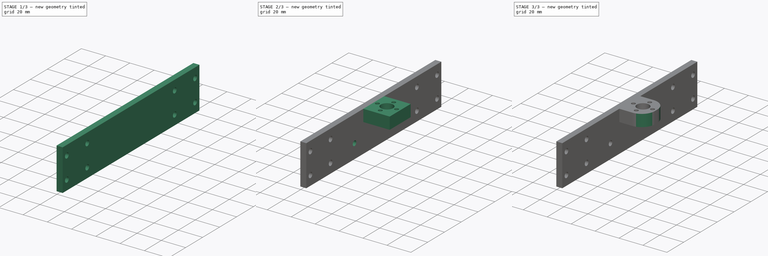
[diagram: build sequence overview — one tinted view per stage of 3, left to right]
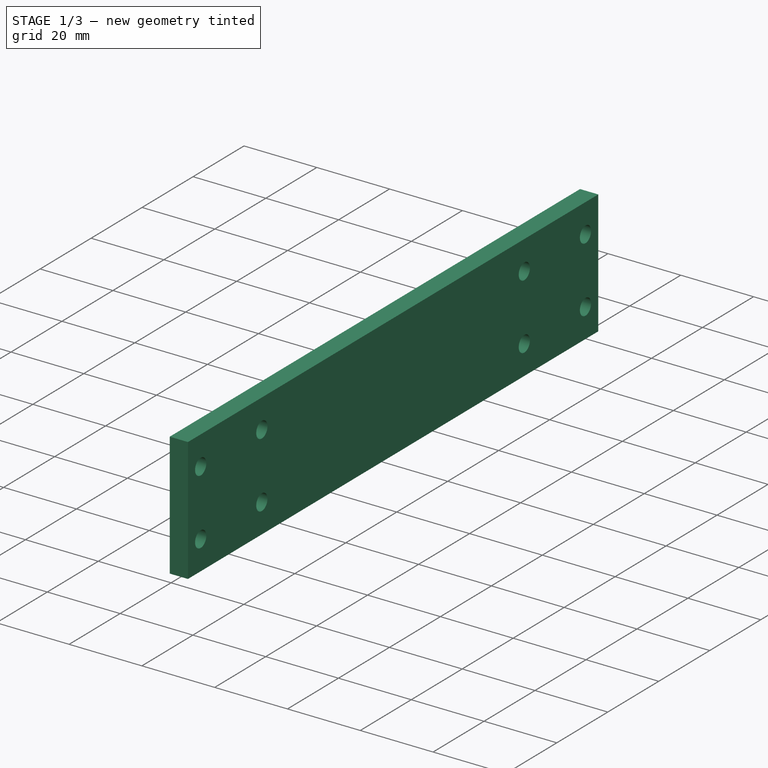
[diagram: stage 1 of 3 — iso view after this stage's code; geometry added in this stage tinted green]
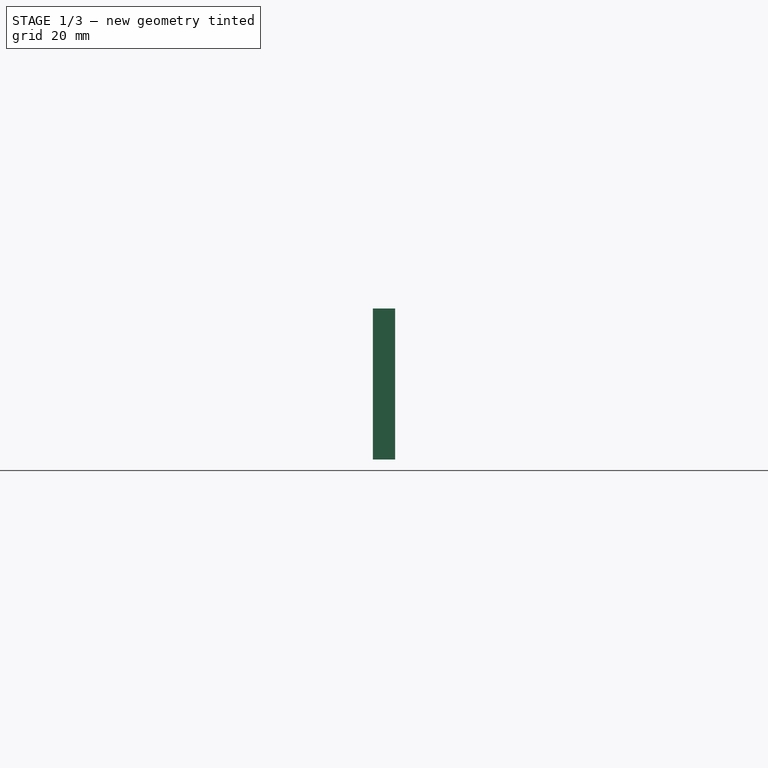
[diagram: stage 1 of 3 — front view after this stage's code; geometry added in this stage tinted green]
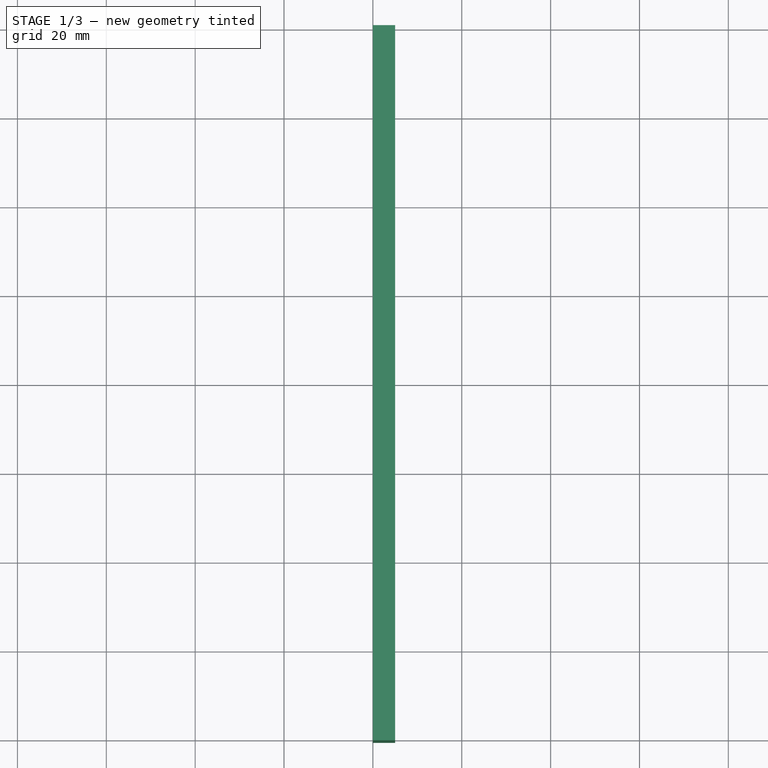
[diagram: stage 1 of 3 — top view after this stage's code; geometry added in this stage tinted green]
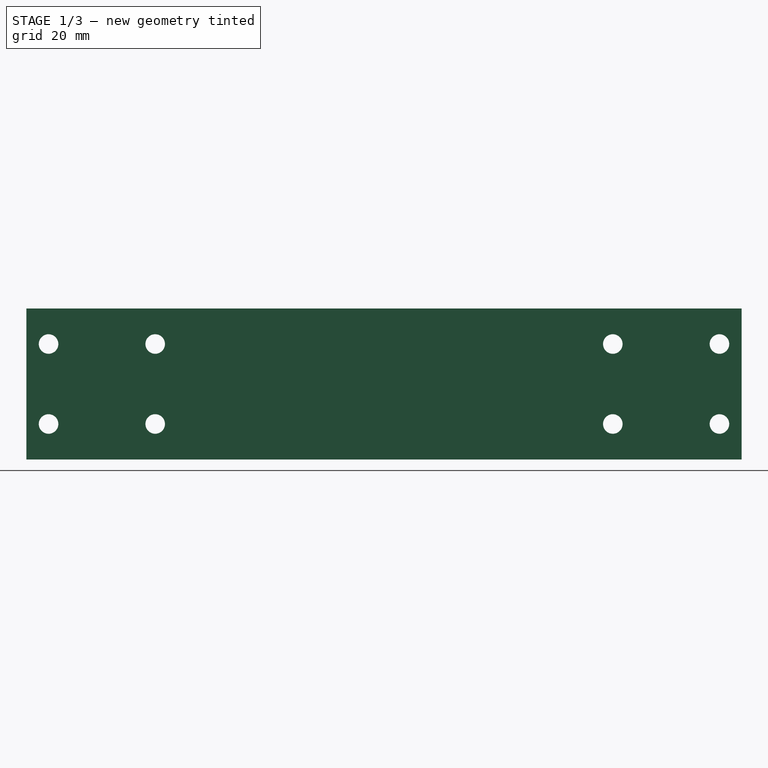
[diagram: stage 1 of 3 — right view after this stage's code; geometry added in this stage tinted green]
FCSTD DOCUMENT  (FreeCAD 0.19R22960 (Git))
Label: led_carrier
License: All rights reserved
LicenseURL: http://en.wikipedia.org/wiki/All_rights_reserved
objects: PartDesign::CoordinateSystem×5, Sketcher::SketchObject×5, App::Link×4, App::DocumentObjectGroup×3, PartDesign::Pad×2, PartDesign::Pocket×2, PartDesign::Fillet×2, Part::FeaturePython×2, App::FeaturePython×1, PartDesign::Hole×1, PartDesign::Body×1, App::Part×1, App::AnnotationLabel×1
note: 27 computed .brp shape members not serialized (recipe doc carries the construction recipe); baked Part::Feature solids carry a one-line shape summary decoded from their .brp
EXTERNAL_REF file=part/SCS8UU.FCStd obj=MH1
EXTERNAL_REF file=part/SCS8UU.FCStd obj=Model
EXTERNAL_REF file=part/Lead_Screw_Nut.FCStd obj=MH
EXTERNAL_REF file=part/Lead_Screw_Nut.FCStd obj=Model
EXTERNAL_REF file=part/led_clamp.FCStd obj=MH
EXTERNAL_REF file=part/led_clamp.FCStd obj=Model

FEATURE [PartDesign::Body] Body
  Group = -> [Sketch,Pad,Sketch003,Hole,Sketch004,Pad001,Sketch005,Pocket,Sketch006,Pocket001,Fillet,Fillet001]
  Origin = -> Origin001
  Tip = -> Fillet001
FEATURE [App::Part] Model
  Configuration = 0
  Group = -> [LCS_Origin,Constraints,Variables,Body,MH1,MH2,SCS8UU,SCS8UU001,Nut_Mount,Lead_Screw_Nut,LED_Bracket_MH,led_clamp]
  Origin = -> Origin
  Type = Assembly4 Model
FEATURE [Part::FeaturePython] aCircle  # WARN: FeaturePython — macro-defined, semantics opaque (R4)
FEATURE [Part::FeaturePython] Radius  # WARN: FeaturePython — macro-defined, semantics opaque (R4)
FEATURE [App::AnnotationLabel] MeasureLbl
  BasePosition = (8,-1.65,17)
  LabelText = R = 1.650
  TextPosition = (0,0,0)
FEATURE [App::DocumentObjectGroup] Measures
  Group = -> [aCircle,Radius,MeasureLbl]

RESOLVED EXTERNAL PARTS (link-assembly join: the EXTERNAL_REF files above that resolve inside this repo's crawl, each included once):
---- part part/SCS8UU.FCStd = doc fcstd_db1f1a4ae632 ----
FCSTD DOCUMENT  (FreeCAD 0.19R22960 (Git))
Label: SCS8UU
License: All rights reserved
LicenseURL: http://en.wikipedia.org/wiki/All_rights_reserved
objects: PartDesign::CoordinateSystem×3, App::DocumentObjectGroup×2, Part::Feature×1, PartDesign::FeatureBase×1, PartDesign::Body×1, App::FeaturePython×1, App::Part×1
note: 6 computed .brp shape members not serialized (recipe doc carries the construction recipe); baked Part::Feature solids carry a one-line shape summary decoded from their .brp

FEATURE [Part::Feature] Feature  label="SCS8UU Block, Linear Bearing, 8mm Shaft v005"
  shape: bbox 30 x 22.22 x 34 mm, 209 faces, 4 solids (baked)
FEATURE [PartDesign::FeatureBase] BaseFeature
  BaseFeature = -> Feature
FEATURE [PartDesign::Body] Body
  BaseFeature = -> Feature
  Group = -> [BaseFeature]
  Origin = -> Origin
  Tip = -> BaseFeature
FEATURE [App::DocumentObjectGroup] Parts
FEATURE [PartDesign::CoordinateSystem] LCS_Origin
  AttacherType = Attacher::AttachEngine3D
  MapMode = 2
  Support = -> [X_Axis001]
FEATURE [App::DocumentObjectGroup] Constraints
FEATURE [App::FeaturePython] Variables  # WARN: FeaturePython — macro-defined, semantics opaque (R4)
FEATURE [PartDesign::CoordinateSystem] MH1
  AttacherType = Attacher::AttachEngine3D
  AttachmentOffset = pos=(6,0,-4) rot=(0,0,1;0rad)
  MapMode = 1
  Placement = pos=(6,1,-5) rot=(0.57735,-0.57735,-0.57735;2.0944rad)
  Support = -> [BaseFeature]
FEATURE [PartDesign::CoordinateSystem] Rail_MH
  AttacherType = Attacher::AttachEngine3D
  MapMode = 11
  Placement = pos=(26.75,-10,-17) rot=(0.707107,0,0.707107;3.14159rad)
  Support = -> [BaseFeature]
FEATURE [App::Part] Model
  Configuration = 0
  Group = -> [LCS_Origin,Constraints,Variables,Feature,Body,MH1,Rail_MH]
  Origin = -> Origin001
  Type = Assembly4 Model
---- part part/led_clamp.FCStd = doc fcstd_775788ca02b6 ----
FCSTD DOCUMENT  (FreeCAD 0.19R22960 (Git))
Label: led_clamp
License: All rights reserved
LicenseURL: http://en.wikipedia.org/wiki/All_rights_reserved
objects: Sketcher::SketchObject×4, PartDesign::CoordinateSystem×3, App::DocumentObjectGroup×2, PartDesign::Pad×2, App::FeaturePython×1, App::Link×1, PartDesign::Hole×1, PartDesign::Pocket×1, PartDesign::Body×1, App::Part×1
note: 16 computed .brp shape members not serialized (recipe doc carries the construction recipe); baked Part::Feature solids carry a one-line shape summary decoded from their .brp
EXTERNAL_REF file=led_panel.FCStd obj=MH
EXTERNAL_REF file=led_panel.FCStd obj=Model

FEATURE [App::DocumentObjectGroup] Parts
FEATURE [PartDesign::CoordinateSystem] LCS_Origin
  AttacherType = Attacher::AttachEngine3D
  MapMode = 2
  Support = -> [X_Axis]
FEATURE [App::DocumentObjectGroup] Constraints
FEATURE [App::FeaturePython] Variables  # WARN: FeaturePython — macro-defined, semantics opaque (R4)
FEATURE [Sketcher::SketchObject] Sketch
  MapMode = 5
  Support = -> [XY_Plane001]
  sketch-geometry (8):
    g0: LineSegment StartX=50.5 StartY=-30 StartZ=0 EndX=-50.5 EndY=-30 EndZ=0
    g1: LineSegment StartX=-27 StartY=40 StartZ=0 EndX=-27 EndY=30 EndZ=0
    g2: LineSegment StartX=-27 StartY=30 StartZ=0 EndX=-50.5 EndY=30 EndZ=0
    g3: LineSegment StartX=27 StartY=40 StartZ=0 EndX=27 EndY=30 EndZ=0
    g4: LineSegment StartX=27 StartY=30 StartZ=0 EndX=50.5 EndY=30 EndZ=0
    g5: LineSegment StartX=-50.5 StartY=30 StartZ=0 EndX=-50.5 EndY=-30 EndZ=0
    g6: LineSegment StartX=-27 StartY=40 StartZ=0 EndX=27 EndY=40 EndZ=0
    g7: LineSegment StartX=50.5 StartY=30 StartZ=0 EndX=50.5 EndY=-30 EndZ=0
  constraints (22):
    c: Symmetric(g0,g0,g-2)
    c: DistanceX(g0,g0) = 101
    c: Coincident(g1,g2)
    c: Horizontal(g2)
    c: Vertical(g1)
    c: Coincident(g3,g4)
    c: Horizontal(g4)
    c: Vertical(g3)
    c: Equal(g3,g1)
    c: Equal(g2,g4)
    c: Coincident(g5,g2)
    c: Coincident(g5,g0)
    c: Coincident(g6,g1)
    c: Coincident(g6,g3)
    c: Horizontal(g6)
    c: Coincident(g7,g4)
    c: Coincident(g7,g0)
    c: Vertical(g7)
    c: DistanceY(g7,g7) = 60
    c: DistanceY(g3,g3) = 10
    c: DistanceX(g6,g6) = 54
    c: Symmetric(g2,g0,g-1)
FEATURE [PartDesign::Pad] Pad
  Direction = (1,1,1)
  Length = 5
  Length2 = 100
  Profile = -> Sketch
  Type = 0
FEATURE [Sketcher::SketchObject] Sketch002
  ExternalGeometry = -> [Pad001]
  MapMode = 5
  Placement = pos=(0,30,0) rot=(1,0,0;1.5708rad)
  Support = -> [Pad001]
  sketch-geometry (9):
    g0: Circle CenterX=-23 CenterY=-6 CenterZ=0 NormalX=0 NormalY=0 NormalZ=1 AngleXU=0 Radius=2.1
    g1: Circle CenterX=23 CenterY=-6 CenterZ=0 NormalX=0 NormalY=0 NormalZ=1 AngleXU=0 Radius=2.1
    g2: LineSegment [constr] StartX=-23 StartY=-6 StartZ=0 EndX=-23 EndY=-12 EndZ=0
    g3: LineSegment [constr] StartX=23 StartY=-6 StartZ=0 EndX=23 EndY=-12 EndZ=0
    g4: LineSegment [constr] StartX=23 StartY=-6 StartZ=0 EndX=23 EndY=0 EndZ=0
    g5: LineSegment [constr] StartX=-23 StartY=-6 StartZ=0 EndX=-27 EndY=-6 EndZ=0
    g6: LineSegment [constr] StartX=23 StartY=-6 StartZ=0 EndX=27 EndY=-6 EndZ=0
    g7: LineSegment [constr] StartX=-23 StartY=-6 StartZ=0 EndX=-23 EndY=0 EndZ=0
    g8: LineSegment [constr] StartX=-23 StartY=-6 StartZ=0 EndX=23 EndY=-6 EndZ=0
  constraints (27):
    c: Coincident(g2,g0)
    c: PointOnObject(g2,g-6)
    c: Vertical(g2)
    c: Coincident(g3,g1)
    c: PointOnObject(g3,g-6)
    c: Vertical(g3)
    c: Coincident(g4,g1)
    c: PointOnObject(g4,g-5)
    c: Vertical(g4)
    c: Equal(g4,g3)
    c: Equal(g0,g1)
    c: Coincident(g5,g0)
    c: PointOnObject(g5,g-3)
    c: Horizontal(g5)
    c: Coincident(g6,g1)
    c: PointOnObject(g6,g-4)
    c: Horizontal(g6)
    c: Equal(g5,g6)
    c: DistanceX(g5,g5) = 4
    c: Radius(g0) = 2.1
    c: Coincident(g7,g0)
    c: PointOnObject(g7,g-5)
    c: Vertical(g7)
    c: Equal(g7,g2)
    c: Coincident(g8,g0)
    c: Coincident(g8,g1)
    c: DistanceX(g8,g8) = 46
FEATURE [PartDesign::Hole] Hole
  BaseFeature = -> Pad001
  Depth = 25
  DepthType = 0
  Diameter = 4.4
  DrillPoint = 1
  DrillPointAngle = 118
  HoleCutCountersinkAngle = 90
  HoleCutDepth = 0
  HoleCutDiameter = 0
  HoleCutType = 0
  ModelActualThread = false
  Profile = -> Sketch002
  Tapered = false
  TaperedAngle = 90
  ThreadAngle = 0
  ThreadClass = 0
  ThreadCutOffInner = 0
  ThreadCutOffOuter = 0
  ThreadDirection = 0
  ThreadFit = 0
  ThreadPitch = 0
  ThreadSize = 5
  ThreadType = 1
  Threaded = false
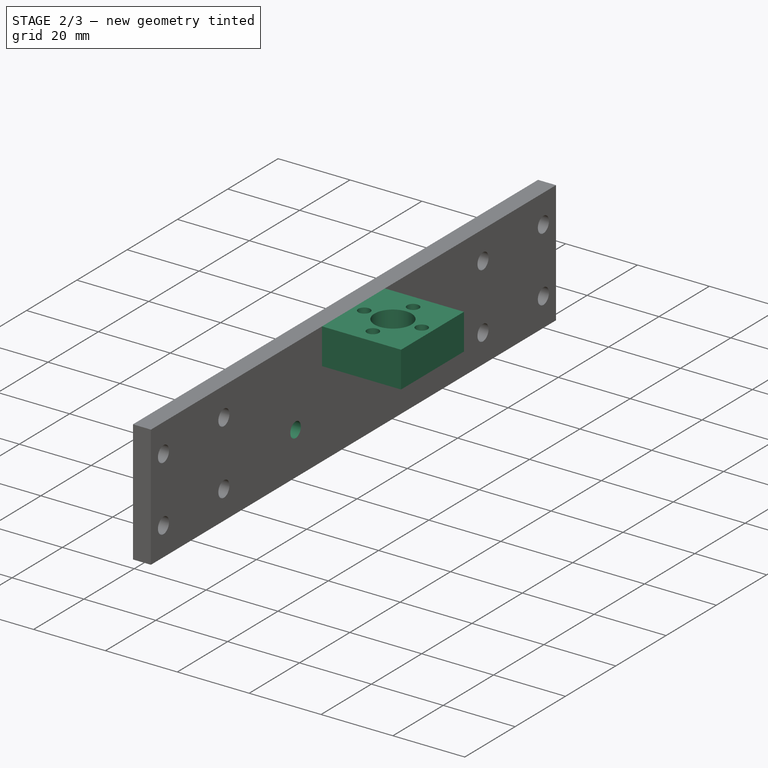
[diagram: stage 2 of 3 — iso view after this stage's code; geometry added in this stage tinted green]
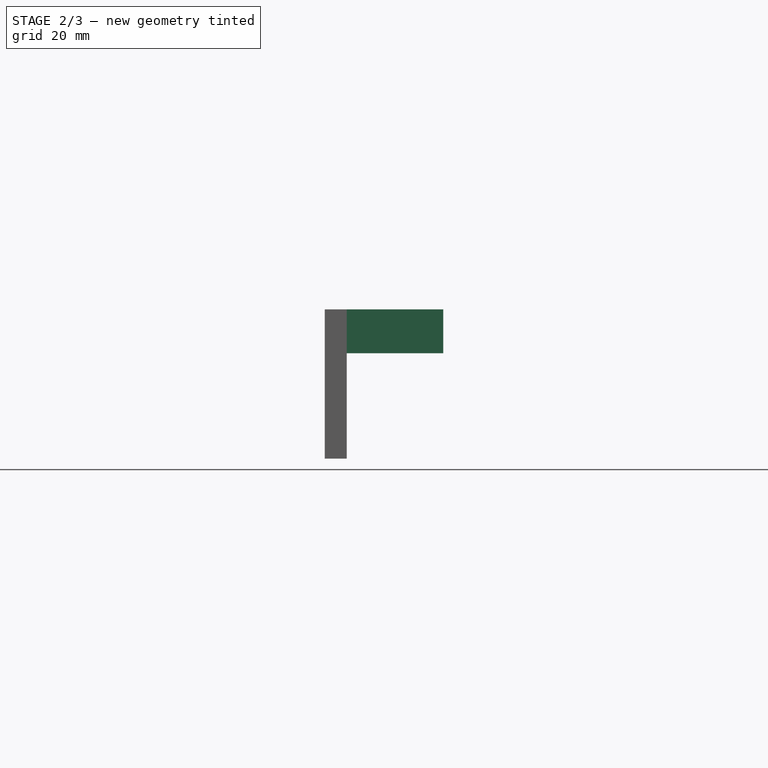
[diagram: stage 2 of 3 — front view after this stage's code; geometry added in this stage tinted green]
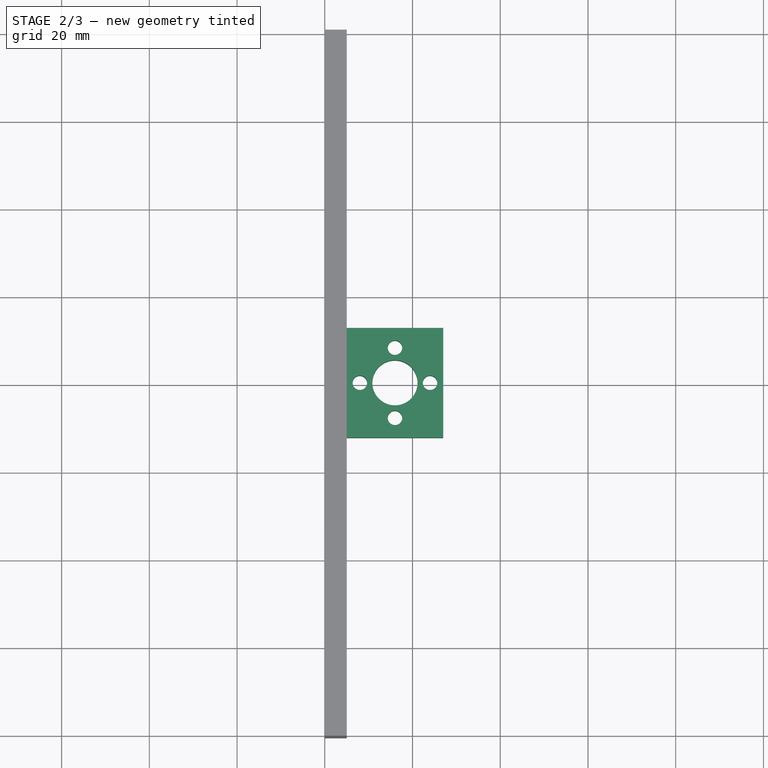
[diagram: stage 2 of 3 — top view after this stage's code; geometry added in this stage tinted green]
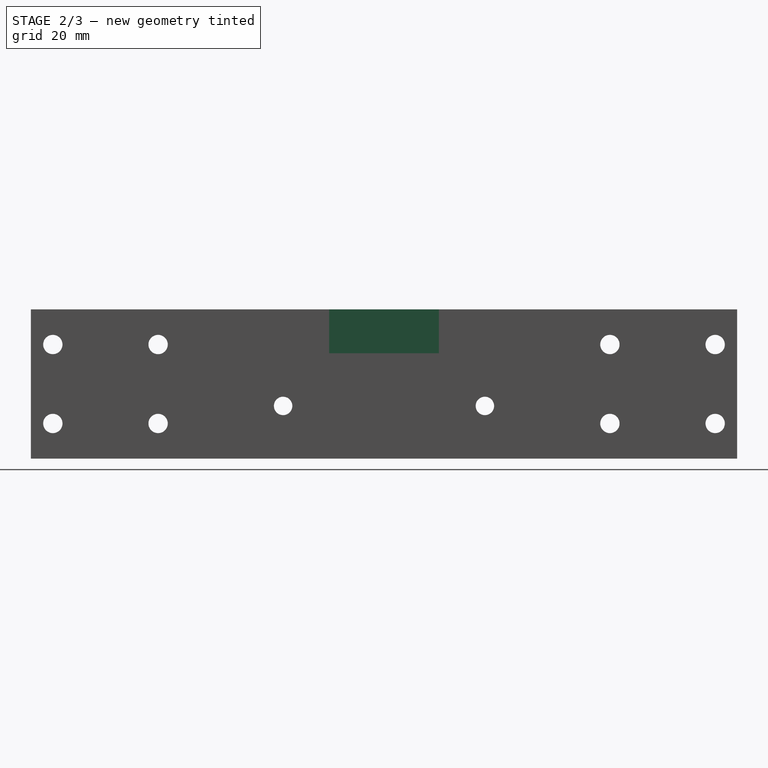
[diagram: stage 2 of 3 — right view after this stage's code; geometry added in this stage tinted green]
FEATURE [App::DocumentObjectGroup] Parts
FEATURE [PartDesign::CoordinateSystem] LCS_Origin
  AttacherType = Attacher::AttachEngine3D
  MapMode = 2
  Support = -> [X_Axis]
FEATURE [App::DocumentObjectGroup] Constraints
FEATURE [App::FeaturePython] Variables  # WARN: FeaturePython — macro-defined, semantics opaque (R4)
FEATURE [Sketcher::SketchObject] Sketch
  MapMode = 5
  Placement = pos=(0,0,0) rot=(0.57735,0.57735,0.57735;2.0944rad)
  Support = -> [YZ_Plane001]
  sketch-geometry (4):
    g0: LineSegment StartX=-80.5 StartY=17 StartZ=0 EndX=80.5 EndY=17 EndZ=0
    g1: LineSegment StartX=80.5 StartY=17 StartZ=0 EndX=80.5 EndY=-17 EndZ=0
    g2: LineSegment StartX=80.5 StartY=-17 StartZ=0 EndX=-80.5 EndY=-17 EndZ=0
    g3: LineSegment StartX=-80.5 StartY=-17 StartZ=0 EndX=-80.5 EndY=17 EndZ=0
  constraints (10):
    c: Coincident(g0,g1)
    c: Coincident(g1,g2)
    c: Coincident(g2,g3)
    c: Coincident(g3,g0)
    c: Horizontal(g0)
    c: Vertical(g3)
    c: DistanceX(g2,g2) = 161
    c: Symmetric(g2,g1,g-2)
    c: Symmetric(g1,g0,g-1)
    c: DistanceY(g1,g1) = 34
FEATURE [PartDesign::Pad] Pad
  Direction = (1,1,1)
  Length = 5
  Length2 = 100
  Placement = pos=(0,0,0) rot=(0.57735,0.57735,0.57735;2.0944rad)
  Profile = -> Sketch
  Type = 0
FEATURE [Sketcher::SketchObject] Sketch003
  ExternalGeometry = -> [Pad]
  MapMode = 5
  Placement = pos=(5,-1.1e-15,1.1e-15) rot=(0.57735,0.57735,0.57735;2.0944rad)
  Support = -> [Pad]
  sketch-geometry (10):
    g0: Circle CenterX=-75.5 CenterY=9 CenterZ=0 NormalX=0 NormalY=0 NormalZ=1 AngleXU=0 Radius=2.05
    g1: Circle CenterX=-75.5 CenterY=-9 CenterZ=0 NormalX=0 NormalY=0 NormalZ=1 AngleXU=0 Radius=2.05
    g2: Circle CenterX=-51.5 CenterY=9 CenterZ=0 NormalX=0 NormalY=0 NormalZ=1 AngleXU=0 Radius=2.05
    g3: Circle CenterX=-51.5 CenterY=-9 CenterZ=0 NormalX=0 NormalY=0 NormalZ=1 AngleXU=0 Radius=2.05
    g4: LineSegment [constr] StartX=-75.5 StartY=9 StartZ=0 EndX=-75.5 EndY=17 EndZ=0
    g5: LineSegment [constr] StartX=-75.5 StartY=-9 StartZ=0 EndX=-75.5 EndY=-17 EndZ=0
    g6: Circle CenterX=51.5 CenterY=9 CenterZ=0 NormalX=0 NormalY=0 NormalZ=1 AngleXU=0 Radius=2.05
    g7: Circle CenterX=51.5 CenterY=-9 CenterZ=0 NormalX=0 NormalY=0 NormalZ=1 AngleXU=0 Radius=2.05
    g8: Circle CenterX=75.5 CenterY=9 CenterZ=0 NormalX=0 NormalY=0 NormalZ=1 AngleXU=0 Radius=2.05
    g9: Circle CenterX=75.5 CenterY=-9 CenterZ=0 NormalX=0 NormalY=0 NormalZ=1 AngleXU=0 Radius=2.05
  constraints (30):
    c: Equal(g0,g2)
    c: Equal(g2,g3)
    c: Equal(g3,g1)
    c: Vertical(g2,g3)
    c: Vertical(g0,g1)
    c: Horizontal(g2,g0)
    c: Horizontal(g3,g1)
    c: DistanceX(g-4,g0) = 5
    c: DistanceY(g1,g0) = 18
    c: DistanceX(g0,g2) = 24
    c: Coincident(g4,g0)
    c: PointOnObject(g4,g-5)
    c: Coincident(g5,g1)
    c: PointOnObject(g5,g-6)
    c: Vertical(g5)
    c: Vertical(g4)
    c: Equal(g4,g5)
    c: Radius(g0) = 2.05
    c: Vertical(g8,g9)
    c: Vertical(g6,g7)
    c: Horizontal(g8,g6)
    c: Horizontal(g9,g7)
    c: DistanceX(g6,g8) = 24
    c: Horizontal(g7,g3)
    c: Horizontal(g6,g2)
    c: DistanceX(g8,g-5) = 5
    c: Equal(g6,g8)
    c: Equal(g8,g7)
    c: Equal(g7,g9)
    c: Equal(g9,g2)
FEATURE [PartDesign::Hole] Hole
  BaseFeature = -> Pad
  Depth = 25
  DepthType = 1
  Diameter = 4.4
  DrillPoint = 1
  DrillPointAngle = 118
  HoleCutCountersinkAngle = 90
  HoleCutDepth = 0
  HoleCutDiameter = 0
  HoleCutType = 0
  ModelActualThread = false
  Placement = pos=(0,0,0) rot=(0.57735,0.57735,0.57735;2.0944rad)
  Profile = -> Sketch003
  Tapered = false
  TaperedAngle = 90
  ThreadAngle = 0
  ThreadClass = 0
  ThreadCutOffInner = 0
  ThreadCutOffOuter = 0
  ThreadDirection = 0
  ThreadFit = 0
  ThreadPitch = 0
  ThreadSize = 5
  ThreadType = 1
  Threaded = false
FEATURE [App::Link] SCS8UU
  AssemblyType = Asm4EE
  AttachedBy = #MH1
  AttachedTo = Parent Assembly#MH1
  AttachmentOffset = pos=(0,0,0) rot=(0,-1,0;1.5708rad)
  LinkPlacement = pos=(6,-80.5,-15) rot=(0.57735,-0.57735,0.57735;2.0944rad)
  LinkedObject = -> <external part/SCS8UU.FCStd>#Model
  Placement = pos=(6,-80.5,-15) rot=(0.57735,-0.57735,0.57735;2.0944rad)
  expr: Placement = MH1.Placement * AttachmentOffset * SCS8UU#MH1.Placement ^ -1
FEATURE [App::Link] SCS8UU001
  AssemblyType = Asm4EE
  AttachedBy = #MH1
  AttachedTo = Parent Assembly#MH2
  AttachmentOffset = pos=(0,0,0) rot=(0,1,0;4.71239rad)
  LinkPlacement = pos=(6,46.5,-15) rot=(-0.57735,0.57735,-0.57735;4.18879rad)
  LinkedObject = -> <external part/SCS8UU.FCStd>#Model
  Placement = pos=(6,46.5,-15) rot=(-0.57735,0.57735,-0.57735;4.18879rad)
  expr: Placement = MH2.Placement * AttachmentOffset * SCS8UU#MH1.Placement ^ -1
FEATURE [PartDesign::CoordinateSystem] MH2
  AttacherType = Attacher::AttachEngine3D
  MapMode = 11
  Placement = pos=(5,51.5,-9) rot=(0.707107,0,0.707107;3.14159rad)
  Support = -> [Hole]
FEATURE [PartDesign::CoordinateSystem] MH1
  AttacherType = Attacher::AttachEngine3D
  MapMode = 11
  Placement = pos=(5,-75.5,-9) rot=(0.707107,0,0.707107;3.14159rad)
  Support = -> [Hole]
FEATURE [Sketcher::SketchObject] Sketch004
  ExternalGeometry = -> [Hole]
  MapMode = 5
  Placement = pos=(5,-1.1e-15,1.1e-15) rot=(0.57735,0.57735,0.57735;2.0944rad)
  Support = -> [Hole]
  sketch-geometry (6):
    g0: LineSegment StartX=-12.5 StartY=7 StartZ=0 EndX=12.5 EndY=7 EndZ=0
    g1: LineSegment StartX=12.5 StartY=7 StartZ=0 EndX=12.5 EndY=17 EndZ=0
    g2: LineSegment StartX=12.5 StartY=17 StartZ=0 EndX=-12.5 EndY=17 EndZ=0
    g3: LineSegment StartX=-12.5 StartY=17 StartZ=0 EndX=-12.5 EndY=7 EndZ=0
    g4: LineSegment [constr] StartX=-80.5 StartY=17 StartZ=0 EndX=-12.5 EndY=17 EndZ=0
    g5: LineSegment [constr] StartX=12.5 StartY=17 StartZ=0 EndX=80.5 EndY=17 EndZ=0
  constraints (16):
    c: Coincident(g0,g1)
    c: Coincident(g1,g2)
    c: Coincident(g2,g3)
    c: Coincident(g3,g0)
    c: Horizontal(g2)
    c: Vertical(g1)
    c: Vertical(g3)
    c: Coincident(g4,g-3)
    c: Coincident(g4,g2)
    c: Coincident(g5,g1)
    c: Coincident(g5,g-3)
    c: Horizontal(g5)
    c: Equal(g5,g4)
    c: DistanceX(g2,g2) = 25
    c: Horizontal(g0)
    c: DistanceY(g3,g3) = 10
FEATURE [PartDesign::Pad] Pad001
  BaseFeature = -> Hole
  Direction = (1,1,1)
  Length = 22
  Length2 = 100
  Placement = pos=(0,0,0) rot=(0.57735,0.57735,0.57735;2.0944rad)
  Profile = -> Sketch004
  Type = 0
FEATURE [Sketcher::SketchObject] Sketch005
  ExternalGeometry = -> [Pad001]
  MapMode = 5
  Placement = pos=(-5.6e-15,0,17) rot=(0,0,-1;1.5708rad)
  Support = -> [Pad001]
  sketch-geometry (9):
    g0: Circle CenterX=0 CenterY=16 CenterZ=0 NormalX=0 NormalY=0 NormalZ=1 AngleXU=0 Radius=5.15
    g1: Circle CenterX=0 CenterY=8 CenterZ=0 NormalX=0 NormalY=0 NormalZ=1 AngleXU=0 Radius=1.65
    g2: Circle CenterX=8 CenterY=16 CenterZ=0 NormalX=0 NormalY=0 NormalZ=1 AngleXU=0 Radius=1.65
    g3: Circle CenterX=-8 CenterY=16 CenterZ=0 NormalX=0 NormalY=0 NormalZ=1 AngleXU=0 Radius=1.65
    g4: Circle CenterX=0 CenterY=24 CenterZ=0 NormalX=0 NormalY=0 NormalZ=1 AngleXU=0 Radius=1.65
    g5: LineSegment [constr] StartX=0 StartY=16 StartZ=0 EndX=8 EndY=16 EndZ=0
    g6: LineSegment [constr] StartX=0 StartY=16 StartZ=0 EndX=0 EndY=24 EndZ=0
    g7: LineSegment [constr] StartX=0 StartY=16 StartZ=0 EndX=-8 EndY=16 EndZ=0
    g8: LineSegment [constr] StartX=0 StartY=16 StartZ=0 EndX=0 EndY=8 EndZ=0
  constraints (23):
    c: PointOnObject(g0,g-2)
    c: Radius(g0) = 5.15
    c: DistanceY(g-4,g0) = 11
    c: PointOnObject(g1,g-2)
    c: PointOnObject(g4,g-2)
    c: Coincident(g5,g0)
    c: Coincident(g5,g2)
    c: Horizontal(g5)
    c: Coincident(g6,g0)
    c: Coincident(g6,g4)
    c: Coincident(g7,g0)
    c: Coincident(g7,g3)
    c: Horizontal(g7)
    c: Coincident(g8,g0)
    c: Coincident(g8,g1)
    c: Equal(g7,g8)
    c: Equal(g8,g5)
    c: Equal(g5,g6)
    c: DistanceX(g7,g7) = 8
    c: Equal(g3,g4)
    c: Equal(g4,g2)
    c: Equal(g2,g1)
    c: Diameter(g3) = 3.3
FEATURE [PartDesign::Pocket] Pocket
  BaseFeature = -> Pad001
  Length = 5
  Length2 = 100
  Placement = pos=(0,0,0) rot=(0.57735,0.57735,0.57735;2.0944rad)
  Profile = -> Sketch005
  Type = 1
FEATURE [App::Link] Lead_Screw_Nut
  AssemblyType = Asm4EE
  AttachedBy = #MH
  AttachedTo = Parent Assembly#Nut_Mount
  LinkPlacement = pos=(16,7.1e-15,20.5) rot=(0,0,1;1.5708rad)
  LinkedObject = -> <external part/Lead_Screw_Nut.FCStd>#Model
  Placement = pos=(16,7.1e-15,20.5) rot=(0,0,1;1.5708rad)
  expr: Placement = Nut_Mount.Placement * AttachmentOffset * Lead_Screw_Nut#MH.Placement ^ -1
FEATURE [Sketcher::SketchObject] Sketch006
  MapMode = 5
  Placement = pos=(0,0,0) rot=(0.57735,0.57735,-0.57735;4.18879rad)
  sketch-geometry (5):
    g0: Circle CenterX=23 CenterY=5 CenterZ=0 NormalX=0 NormalY=0 NormalZ=1 AngleXU=0 Radius=2.1
    g1: Circle CenterX=-23 CenterY=5 CenterZ=0 NormalX=0 NormalY=0 NormalZ=1 AngleXU=0 Radius=2.1
    g2: LineSegment [constr] StartX=23 StartY=5 StartZ=0 EndX=-23 EndY=5 EndZ=0
    g3: LineSegment [constr] StartX=23 StartY=5 StartZ=0 EndX=80.5 EndY=5 EndZ=0
    g4: LineSegment [constr] StartX=-23 StartY=5 StartZ=0 EndX=-80.5 EndY=5 EndZ=0
  constraints (11):
    c: Coincident(g2,g0)
    c: Coincident(g2,g1)
    c: Horizontal(g2)
    c: DistanceX(g2,g2) = 46
    c: Coincident(g3,g0)
    c: Horizontal(g3)
    c: Coincident(g4,g1)
    c: Horizontal(g4)
    c: Equal(g4,g3)
    c: Equal(g0,g1)
    c: Radius(g0) = 2.1
FEATURE [PartDesign::Pocket] Pocket001
  BaseFeature = -> Pocket
  Length = 5
  Length2 = 100
  Placement = pos=(0,0,0) rot=(0.57735,0.57735,0.57735;2.0944rad)
  Profile = -> Sketch006
  Type = 1
FEATURE [App::Link] led_panel
  AssemblyType = Asm4EE
  AttachedBy = #MH
  AttachedTo = Parent Assembly#LED_Mount
  LinkPlacement = pos=(5.68e-14,-99.5,6) rot=(0.57735,0.57735,-0.57735;2.0944rad)
  LinkedObject = -> <external led_panel.FCStd>#Model
  Placement = pos=(5.68e-14,-99.5,6) rot=(0.57735,0.57735,-0.57735;2.0944rad)
  expr: Placement = LED_Mount.Placement * AttachmentOffset * led_panel#MH.Placement ^ -1
FEATURE [Sketcher::SketchObject] Sketch001
  ExternalGeometry = -> [Pad]
  MapMode = 5
  Placement = pos=(0,0,0) rot=(1,0,0;3.14159rad)
  Support = -> [Pad]
  sketch-geometry (4):
    g0: LineSegment StartX=-27 StartY=-30 StartZ=0 EndX=27 EndY=-30 EndZ=0
    g1: LineSegment StartX=27 StartY=-30 StartZ=0 EndX=27 EndY=-40 EndZ=0
    g2: LineSegment StartX=27 StartY=-40 StartZ=0 EndX=-27 EndY=-40 EndZ=0
    g3: LineSegment StartX=-27 StartY=-40 StartZ=0 EndX=-27 EndY=-30 EndZ=0
  constraints (10):
    c: Coincident(g0,g1)
    c: Coincident(g1,g2)
    c: Coincident(g2,g3)
    c: Coincident(g3,g0)
    c: Horizontal(g0)
    c: Horizontal(g2)
    c: Vertical(g1)
    c: Vertical(g3)
    c: Coincident(g0,g-4)
    c: Coincident(g1,g-3)
FEATURE [PartDesign::Pad] Pad001
  BaseFeature = -> Pad
  Direction = (1,1,1)
  Length = 12
  Length2 = 100
  Profile = -> Sketch001
  Type = 0
FEATURE [PartDesign::CoordinateSystem] MH
  AttacherType = Attacher::AttachEngine3D
  MapMode = 11
  Placement = pos=(23,40,-6) rot=(0.57735,0.57735,0.57735;4.18879rad)
  Support = -> [Hole]
FEATURE [Sketcher::SketchObject] Sketch003
  ExternalGeometry = -> [Hole]
  MapMode = 5
  Placement = pos=(0,0,0) rot=(1,0,0;3.14159rad)
  Support = -> [Hole]
  sketch-geometry (12):
    g0: Circle CenterX=-42.5 CenterY=-22 CenterZ=0 NormalX=0 NormalY=0 NormalZ=1 AngleXU=0 Radius=2.75
    g1: Circle CenterX=42.5 CenterY=-22 CenterZ=0 NormalX=0 NormalY=0 NormalZ=1 AngleXU=0 Radius=2.75
    g2: LineSegment [constr] StartX=-42.5 StartY=-22 StartZ=0 EndX=-50.5 EndY=-22 EndZ=0
    g3: LineSegment [constr] StartX=-42.5 StartY=-22 StartZ=0 EndX=-42.5 EndY=-30 EndZ=0
    g4: LineSegment [constr] StartX=42.5 StartY=-22 StartZ=0 EndX=42.5 EndY=-30 EndZ=0
    g5: LineSegment [constr] StartX=42.5 StartY=-22 StartZ=0 EndX=50.5 EndY=-22 EndZ=0
    g6: Circle CenterX=-46.5 CenterY=20 CenterZ=0 NormalX=0 NormalY=0 NormalZ=1 AngleXU=0 Radius=2
    g7: Circle CenterX=46.5 CenterY=20 CenterZ=0 NormalX=0 NormalY=0 NormalZ=1 AngleXU=0 Radius=2
    g8: LineSegment [constr] StartX=46.5 StartY=20 StartZ=0 EndX=50.5 EndY=20 EndZ=0
    g9: LineSegment [constr] StartX=-46.5 StartY=20 StartZ=0 EndX=-50.5 EndY=20 EndZ=0
    g10: LineSegment [constr] StartX=-46.5 StartY=20 StartZ=0 EndX=-46.5 EndY=-30 EndZ=0
    g11: LineSegment [constr] StartX=46.5 StartY=20 StartZ=0 EndX=46.5 EndY=-30 EndZ=0
  constraints (36):
    c: Coincident(g2,g0)
    c: PointOnObject(g2,g-4)
    c: Horizontal(g2)
    c: Coincident(g3,g0)
    c: PointOnObject(g3,g-6)
    c: Vertical(g3)
    c: Coincident(g4,g1)
    c: PointOnObject(g4,g-7)
    c: Vertical(g4)
    c: Coincident(g5,g1)
    c: PointOnObject(g5,g-3)
    c: Horizontal(g5)
    c: Equal(g3,g2)
    c: Equal(g2,g4)
    c: Equal(g4,g5)
    c: DistanceX(g2,g2) = 8
    c: Coincident(g8,g7)
    c: PointOnObject(g8,g-3)
    c: Horizontal(g8)
    c: Coincident(g9,g6)
    c: PointOnObject(g9,g-4)
    c: Horizontal(g9)
    c: Equal(g9,g8)
    c: DistanceX(g9,g9) = 4
    c: DistanceY(g-6,g6) = 50
    c: Coincident(g10,g6)
    c: PointOnObject(g10,g-6)
    c: Vertical(g10)
    c: Coincident(g11,g7)
    c: PointOnObject(g11,g-7)
    c: Vertical(g11)
    c: Equal(g11,g10)
    c: Radius(g6) = 2
    c: Radius(g0) = 2.75
    c: Equal(g1,g0)
    c: Equal(g6,g7)
FEATURE [PartDesign::Pocket] Pocket
  BaseFeature = -> Hole
  Length = 5
  Length2 = 100
  Profile = -> Sketch003
  Type = 1
FEATURE [PartDesign::Body] Body
  Group = -> [Sketch,Pad,Sketch001,Pad001,Sketch002,Hole,Sketch003,Pocket]
  Origin = -> Origin001
  Tip = -> Pocket
FEATURE [PartDesign::CoordinateSystem] LED_Mount
  AttacherType = Attacher::AttachEngine3D
  MapMode = 11
  Placement = pos=(42.5,22,5) rot=(0.707107,-0.707107,0;3.14159rad)
  Support = -> [Pocket]
FEATURE [App::Part] Model
  Configuration = 0
  Group = -> [LCS_Origin,Constraints,Variables,MH,Body,led_panel,LED_Mount]
  Origin = -> Origin
  Type = Assembly4 Model
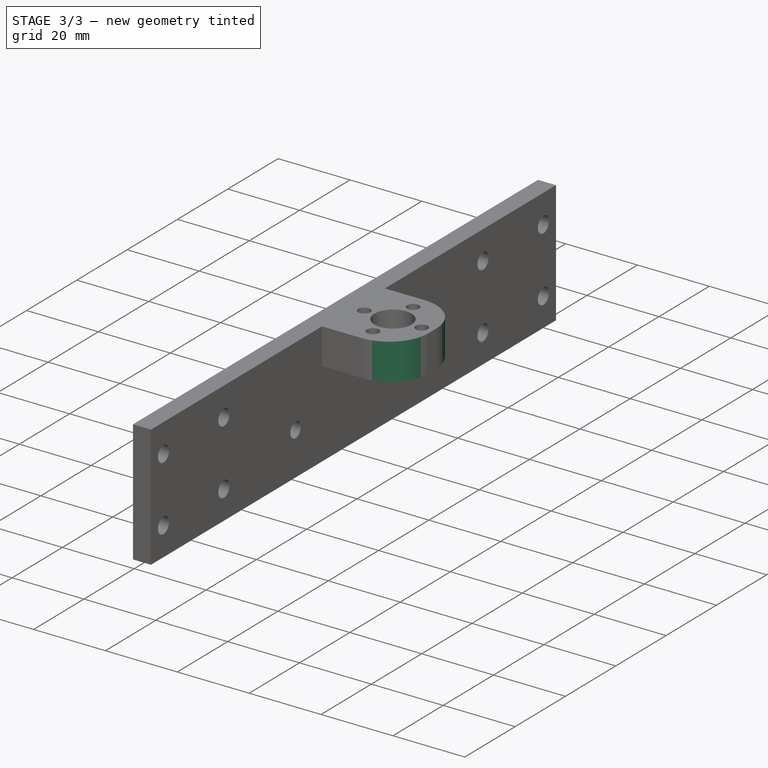
[diagram: stage 3 of 3 — iso view after this stage's code; geometry added in this stage tinted green]
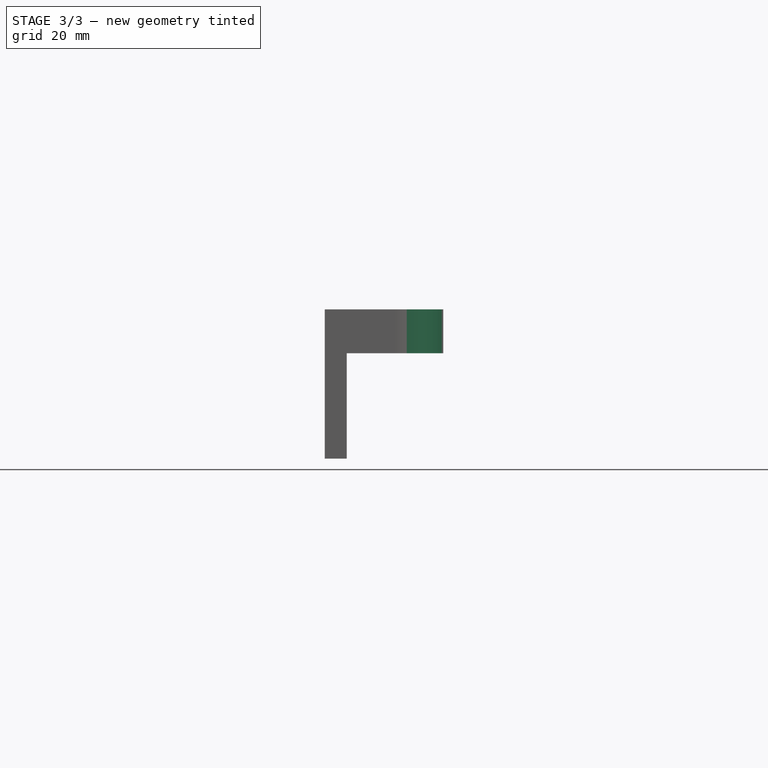
[diagram: stage 3 of 3 — front view after this stage's code; geometry added in this stage tinted green]
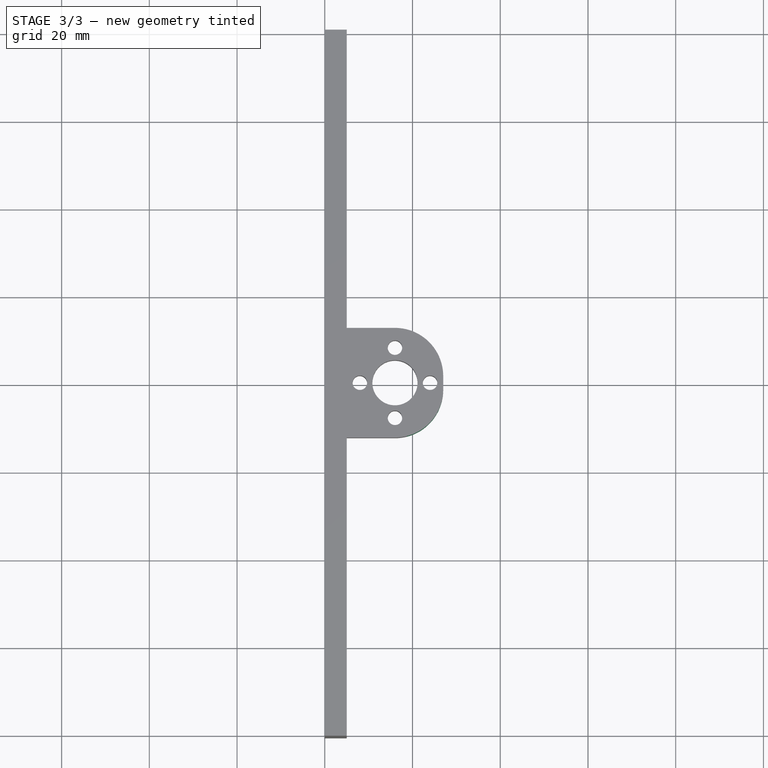
[diagram: stage 3 of 3 — top view after this stage's code; geometry added in this stage tinted green]
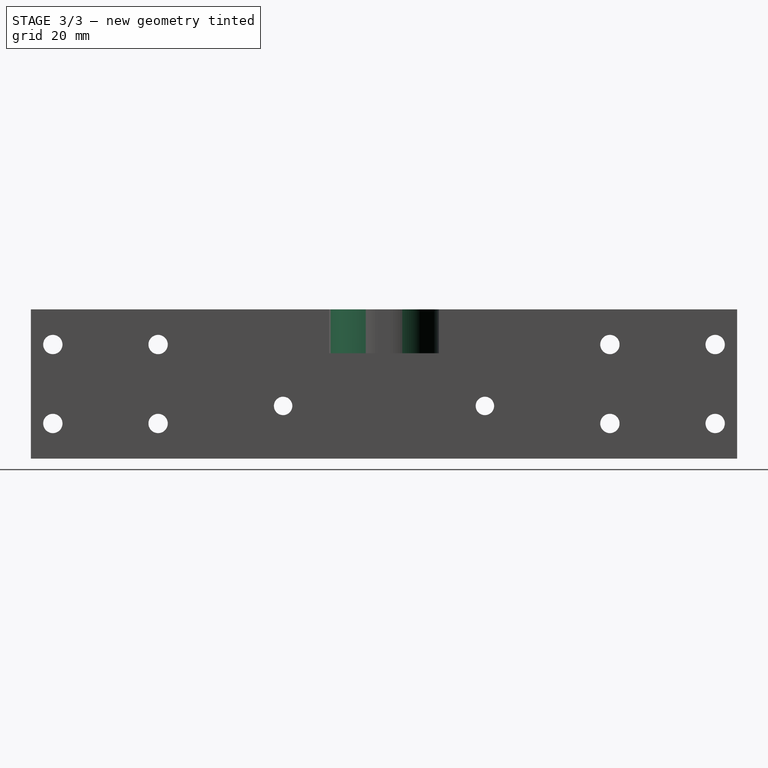
[diagram: stage 3 of 3 — right view after this stage's code; geometry added in this stage tinted green]
FEATURE [PartDesign::CoordinateSystem] Nut_Mount
  AttacherType = Attacher::AttachEngine3D
  MapMode = 11
  Placement = pos=(16,9e-16,17) rot=(0,0,1;0rad)
  Support = -> [Pocket001]
FEATURE [PartDesign::CoordinateSystem] LED_Bracket_MH
  AttacherType = Attacher::AttachEngine3D
  MapMode = 11
  Placement = pos=(9e-15,23,-5) rot=(0.707107,0,-0.707107;3.14159rad)
  Support = -> [Pocket001]
FEATURE [App::Link] led_clamp
  AssemblyType = Asm4EE
  AttachedBy = #MH
  AttachedTo = Parent Assembly#LED_Bracket_MH
  AttachmentOffset = pos=(0,0,0) rot=(-1,0,0;3.14159rad)
  LinkPlacement = pos=(-40,-8.17e-14,-11) rot=(0.707107,0.707107,0;3.14159rad)
  LinkedObject = -> <external part/led_clamp.FCStd>#Model
  Placement = pos=(-40,-8.17e-14,-11) rot=(0.707107,0.707107,0;3.14159rad)
  expr: Placement = LED_Bracket_MH.Placement * AttachmentOffset * led_clamp#MH.Placement ^ -1
FEATURE [PartDesign::Fillet] Fillet
  Base = -> Pocket001 [Edge65]
  BaseFeature = -> Pocket001
  Placement = pos=(0,0,0) rot=(0.57735,0.57735,0.57735;2.0944rad)
  Radius = 11
  SupportTransform = false
FEATURE [PartDesign::Fillet] Fillet001
  Base = -> Fillet [Edge22]
  BaseFeature = -> Fillet
  Placement = pos=(0,0,0) rot=(0.57735,0.57735,0.57735;2.0944rad)
  Radius = 11
  SupportTransform = false
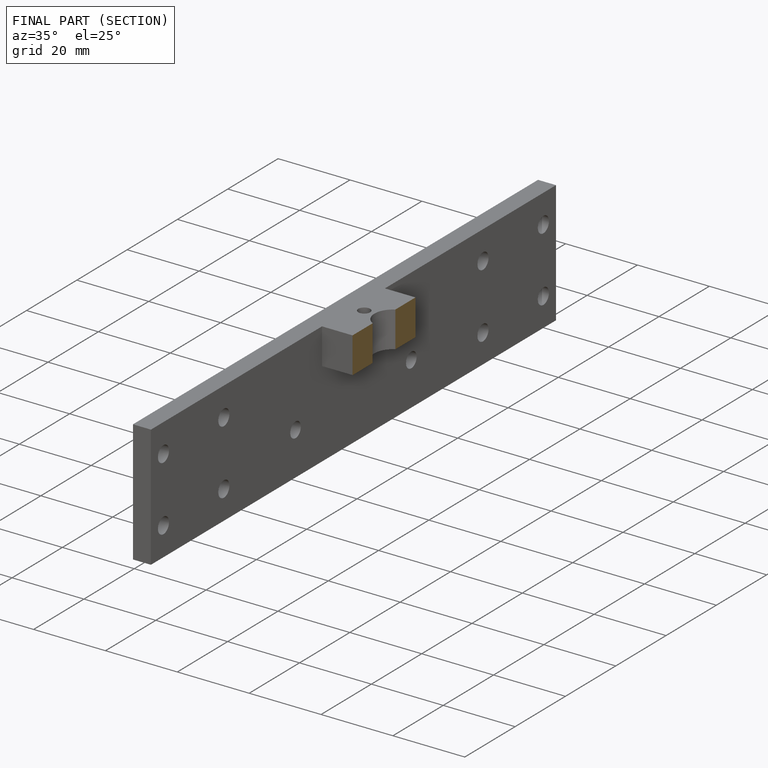
[diagram: finished part — half-section view (interior)]
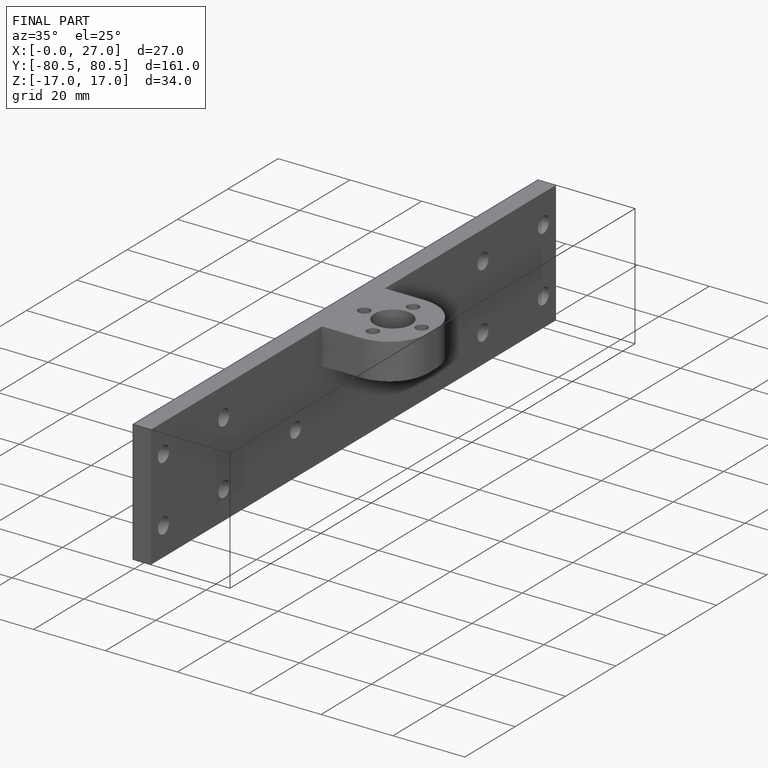
[diagram: finished part — iso view with bounding-box wireframe]
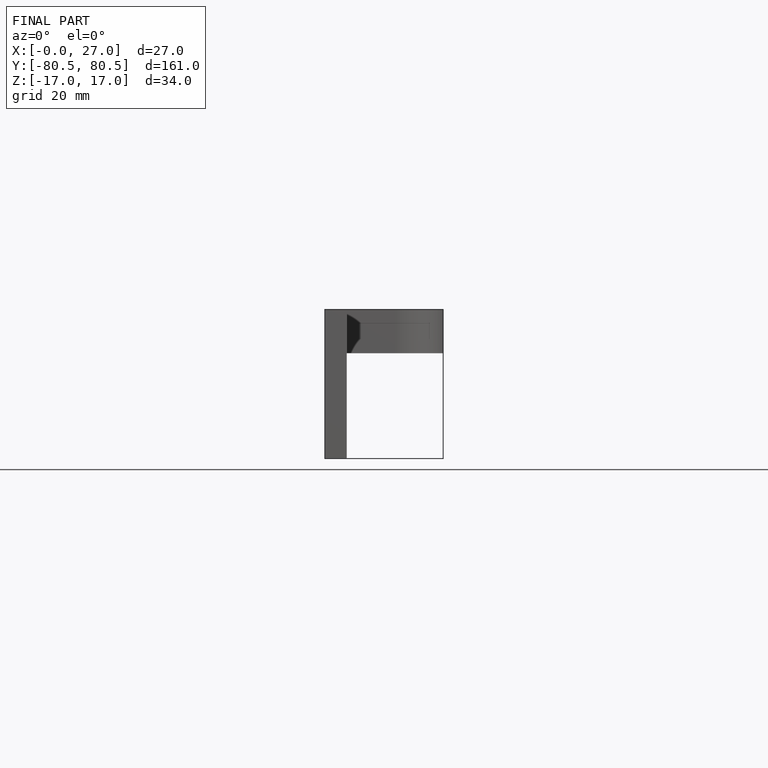
[diagram: finished part — front view with bounding-box wireframe]
